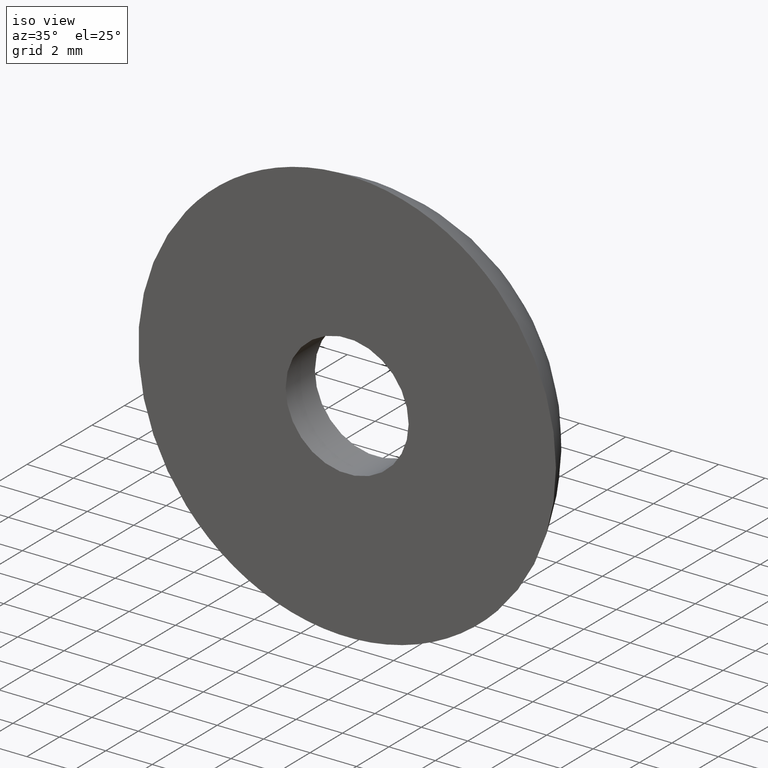
[diagram: clean part render]
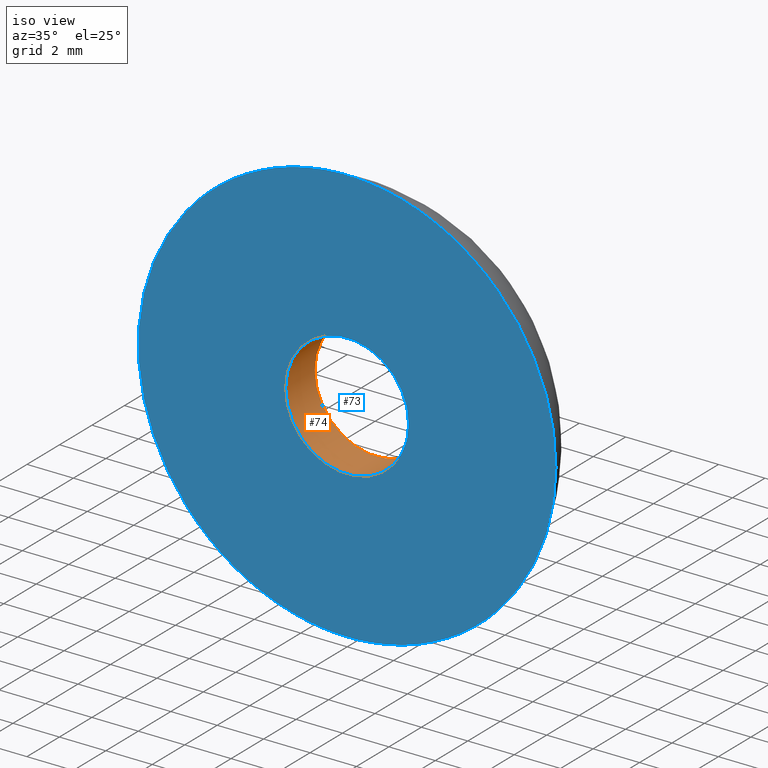
[diagram: same view with the hole feature highlighted: cylindrical wall and planar end face, labeled with their STEP entity ids]
A machine part, iso view. The highlighted faces form one hole feature of diameter 5.3 mm: the cylindrical wall (entity #74, orange) and its adjacent planar end face (entity #73, blue) — they share a circular edge in the B-rep.
Wall:
#16=CYLINDRICAL_SURFACE('',#86,2.65);
#21=FACE_BOUND('',#36,.T.);
#26=FACE_OUTER_BOUND('',#35,.T.);
#35=EDGE_LOOP('',(#60));
#36=EDGE_LOOP('',(#61));
#38=CIRCLE('',#79,2.65);
#41=CIRCLE('',#85,2.65);
#43=VERTEX_POINT('',#113);
#46=VERTEX_POINT('',#122);
#48=EDGE_CURVE('',#43,#43,#38,.T.);
#51=EDGE_CURVE('',#46,#46,#41,.T.);
#60=ORIENTED_EDGE('',*,*,#48,.F.);
#61=ORIENTED_EDGE('',*,*,#51,.T.);
#74=ADVANCED_FACE('',(#26,#21),#16,.F.);
#79=AXIS2_PLACEMENT_3D('',#114,#93,#94);
#85=AXIS2_PLACEMENT_3D('',#123,#105,#106);
#86=AXIS2_PLACEMENT_3D('',#124,#107,#108);
#93=DIRECTION('center_axis',(0.,-1.,0.));
#94=DIRECTION('ref_axis',(1.,0.,0.));
#105=DIRECTION('center_axis',(0.,-1.,0.));
#106=DIRECTION('ref_axis',(1.,0.,0.));
#107=DIRECTION('center_axis',(0.,-1.,0.));
#108=DIRECTION('ref_axis',(1.,0.,0.));
#113=CARTESIAN_POINT('',(2.65,1.8,0.));
#114=CARTESIAN_POINT('Origin',(0.,1.8,0.));
#122=CARTESIAN_POINT('',(2.65,0.,0.));
#123=CARTESIAN_POINT('Origin',(0.,0.,0.));
#124=CARTESIAN_POINT('Origin',(0.,0.9,0.));
End face:
#20=FACE_BOUND('',#34,.T.);
#25=FACE_OUTER_BOUND('',#33,.T.);
#33=EDGE_LOOP('',(#58));
#34=EDGE_LOOP('',(#59));
#40=CIRCLE('',#83,9.);
#41=CIRCLE('',#85,2.65);
#45=VERTEX_POINT('',#119);
#46=VERTEX_POINT('',#122);
#50=EDGE_CURVE('',#45,#45,#40,.T.);
#51=EDGE_CURVE('',#46,#46,#41,.T.);
#58=ORIENTED_EDGE('',*,*,#50,.T.);
#59=ORIENTED_EDGE('',*,*,#51,.F.);
#63=PLANE('',#84);
#73=ADVANCED_FACE('',(#25,#20),#63,.T.);
#83=AXIS2_PLACEMENT_3D('',#120,#101,#102);
#84=AXIS2_PLACEMENT_3D('',#121,#103,#104);
#85=AXIS2_PLACEMENT_3D('',#123,#105,#106);
#101=DIRECTION('center_axis',(0.,-1.,0.));
#102=DIRECTION('ref_axis',(1.,0.,0.));
#103=DIRECTION('center_axis',(0.,-1.,0.));
#104=DIRECTION('ref_axis',(0.,0.,-1.));
#105=DIRECTION('center_axis',(0.,-1.,0.));
#106=DIRECTION('ref_axis',(1.,0.,0.));
#119=CARTESIAN_POINT('',(9.,0.,0.));
#120=CARTESIAN_POINT('Origin',(0.,0.,0.));
#121=CARTESIAN_POINT('Origin',(5.825,0.,0.));
#122=CARTESIAN_POINT('',(2.65,0.,0.));
#123=CARTESIAN_POINT('Origin',(0.,0.,0.));